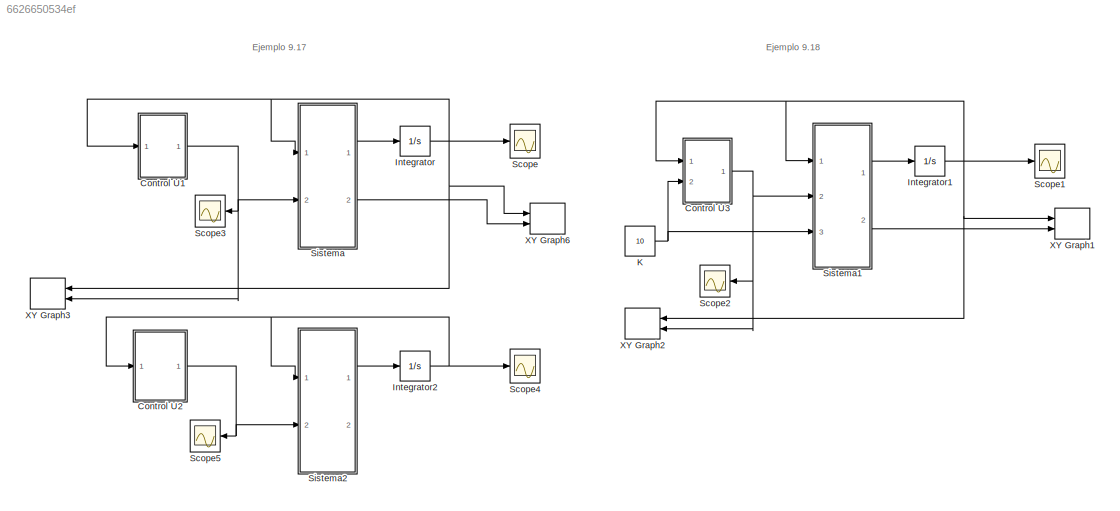
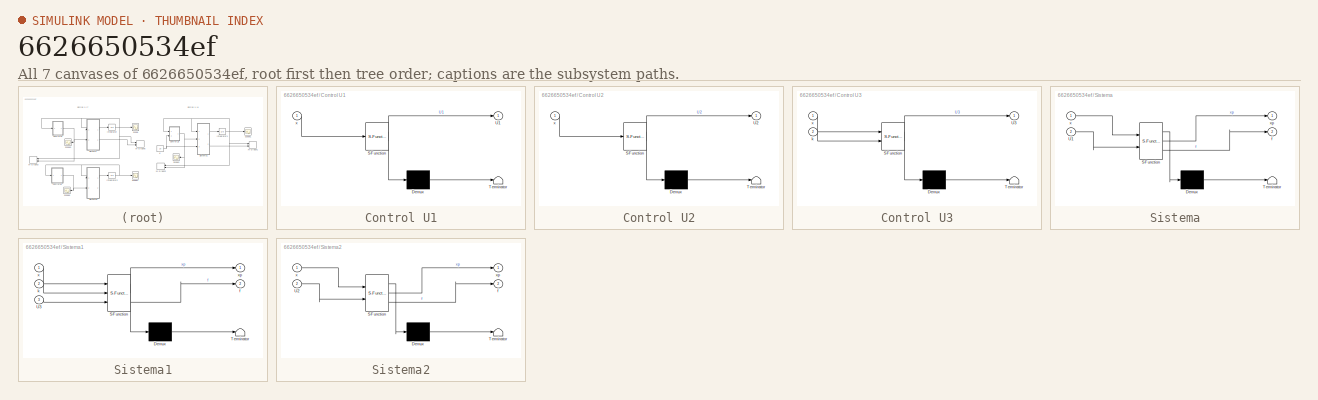
[diagram: thumbnail index - all 7 canvases of the model, root first then tree order]
MODEL slx_6626650534ef
KIND model
CONFIG AbsTol = auto
CONFIG EnableMultiTasking = off
CONFIG FixedStep = 0.01
CONFIG MaxStep = auto
CONFIG MinStep = auto
CONFIG RelTol = 1e-3
CONFIG SampleTimeConstraint = Unconstrained
CONFIG SolverName = ode4
CONFIG StartTime = 0.0
CONFIG StopTime = 20
BLOCK [SubSystem] Control U1
  Commented = on
  ErrorFcn = Stateflow.Translate.translate
  PermitHierarchicalResolution = ExplicitOnly
  Ports = [1, 1]
  RequestExecContextInheritance = off
  SFBlockType = MATLAB Function
  TreatAsAtomicUnit = on
BLOCK [Demux] Control U1/ Demux 
  Outputs = 1
  Ports = [1, 1]
BLOCK [S-Function] Control U1/ SFunction 
  EnableBusSupport = on
  FunctionName = sf_sfun
  PortCounts = [1 2]
  Ports = [1, 2]
  SFcnIsStateOwnerBlock = off
  SFunctionDeploymentMode = off
  Tag = Stateflow S-Function 3
BLOCK [Terminator] Control U1/ Terminator 
BLOCK [Outport] Control U1/U1
BLOCK [Inport] Control U1/x
BLOCK [SubSystem] Control U2
  Commented = on
  ErrorFcn = Stateflow.Translate.translate
  PermitHierarchicalResolution = ExplicitOnly
  Ports = [1, 1]
  RequestExecContextInheritance = off
  SFBlockType = MATLAB Function
  TreatAsAtomicUnit = on
BLOCK [Demux] Control U2/ Demux 
  Outputs = 1
  Ports = [1, 1]
BLOCK [S-Function] Control U2/ SFunction 
  EnableBusSupport = on
  FunctionName = sf_sfun
  PortCounts = [1 2]
  Ports = [1, 2]
  SFcnIsStateOwnerBlock = off
  SFunctionDeploymentMode = off
  Tag = Stateflow S-Function 2
BLOCK [Terminator] Control U2/ Terminator 
BLOCK [Outport] Control U2/U2
BLOCK [Inport] Control U2/x
BLOCK [SubSystem] Control U3
  ErrorFcn = Stateflow.Translate.translate
  PermitHierarchicalResolution = ExplicitOnly
  Ports = [2, 1]
  RequestExecContextInheritance = off
  SFBlockType = MATLAB Function
  TreatAsAtomicUnit = on
BLOCK [Demux] Control U3/ Demux 
  Outputs = 1
  Ports = [1, 1]
BLOCK [S-Function] Control U3/ SFunction 
  EnableBusSupport = on
  FunctionName = sf_sfun
  PortCounts = [2 2]
  Ports = [2, 2]
  SFcnIsStateOwnerBlock = off
  SFunctionDeploymentMode = off
  Tag = Stateflow S-Function 4
BLOCK [Terminator] Control U3/ Terminator 
BLOCK [Outport] Control U3/U3
BLOCK [Inport] Control U3/k
  Port = 2
BLOCK [Inport] Control U3/x
BLOCK [Integrator] Integrator
  Commented = on
  Ports = [1, 1]
BLOCK [Integrator] Integrator1
  InitialCondition = 5
  Ports = [1, 1]
BLOCK [Integrator] Integrator2
  Commented = on
  Ports = [1, 1]
BLOCK [Constant] K
  Value = 10
BLOCK [Scope] Scope
  Commented = on
  Floating = off
  NumInputPorts = 1
  Ports = [1]
  ScopeSpecificationString = Simulink.scopes.TimeScopeBlockCfg('CurrentConfiguration', extmgr.ConfigurationSet(extmgr.Configuration('Core','General UI',true,'FigureColor',[1 1 1]),extmgr.Configuration('Core','Source UI',true),extmgr.Configuration('Sources','WiredSimulink',true),extmgr.Configuration('Visuals','Time Domain',true,'SerializedDisplays',{struct('MinYLimReal','-1.00000','MaxYLimReal','1.00000','YLabelReal','','MinYL...<+1520ch>
BLOCK [Scope] Scope1
  Floating = off
  NumInputPorts = 1
  Ports = [1]
  ScopeSpecificationString = Simulink.scopes.TimeScopeBlockCfg('CurrentConfiguration', extmgr.ConfigurationSet(extmgr.Configuration('Core','General UI',true,'FigureColor',[1 1 1]),extmgr.Configuration('Core','Source UI',true),extmgr.Configuration('Sources','WiredSimulink',true,'DataLoggingVariableName','ScopeData5'),extmgr.Configuration('Visuals','Time Domain',true,'SerializedDisplays',{struct('MinYLimReal','-0.57846','MaxYLi...<+1541ch>
BLOCK [Scope] Scope2
  Floating = off
  NameLocation = top
  NumInputPorts = 1
  Ports = [1]
  ScopeSpecificationString = Simulink.scopes.TimeScopeBlockCfg('CurrentConfiguration', extmgr.ConfigurationSet(extmgr.Configuration('Core','General UI',true,'FigureColor',[1 1 1]),extmgr.Configuration('Core','Source UI',true),extmgr.Configuration('Sources','WiredSimulink',true,'DataLoggingVariableName','ScopeData2'),extmgr.Configuration('Visuals','Time Domain',true,'SerializedDisplays',{struct('MinYLimReal','-5.18216','MaxYLi...<+1517ch>
BLOCK [Scope] Scope3
  Commented = on
  Floating = off
  NameLocation = top
  NumInputPorts = 1
  Ports = [1]
  ScopeSpecificationString = Simulink.scopes.TimeScopeBlockCfg('CurrentConfiguration', extmgr.ConfigurationSet(extmgr.Configuration('Core','General UI',true,'FigureColor',[1 1 1]),extmgr.Configuration('Core','Source UI',true),extmgr.Configuration('Sources','WiredSimulink',true,'DataLoggingVariableName','ScopeData3'),extmgr.Configuration('Visuals','Time Domain',true,'SerializedDisplays',{struct('MinYLimReal','-1.00000','MaxYLi...<+1538ch>
BLOCK [Scope] Scope4
  Commented = on
  Floating = off
  NumInputPorts = 1
  Ports = [1]
  ScopeSpecificationString = Simulink.scopes.TimeScopeBlockCfg('CurrentConfiguration', extmgr.ConfigurationSet(extmgr.Configuration('Core','General UI',true,'FigureColor',[1 1 1]),extmgr.Configuration('Core','Source UI',true),extmgr.Configuration('Sources','WiredSimulink',true,'DataLoggingVariableName','ScopeData1'),extmgr.Configuration('Visuals','Time Domain',true,'SerializedDisplays',{struct('MinYLimReal','-1.00000','MaxYLi...<+1541ch>
BLOCK [Scope] Scope5
  Commented = on
  Floating = off
  NameLocation = top
  NumInputPorts = 1
  Ports = [1]
  ScopeSpecificationString = Simulink.scopes.TimeScopeBlockCfg('CurrentConfiguration', extmgr.ConfigurationSet(extmgr.Configuration('Core','General UI',true,'FigureColor',[1 1 1]),extmgr.Configuration('Core','Source UI',true),extmgr.Configuration('Sources','WiredSimulink',true,'DataLoggingVariableName','ScopeData2'),extmgr.Configuration('Visuals','Time Domain',true,'SerializedDisplays',{struct('MinYLimReal','-1.00000','MaxYLi...<+1514ch>
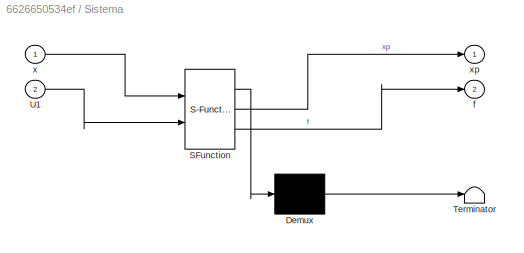
BLOCK [SubSystem] Sistema
  Commented = on
  ErrorFcn = Stateflow.Translate.translate
  PermitHierarchicalResolution = ExplicitOnly
  Ports = [2, 2]
  RequestExecContextInheritance = off
  SFBlockType = MATLAB Function
  TreatAsAtomicUnit = on
BLOCK [Demux] Sistema/ Demux 
  Outputs = 1
  Ports = [1, 1]
BLOCK [S-Function] Sistema/ SFunction 
  EnableBusSupport = on
  FunctionName = sf_sfun
  PortCounts = [2 3]
  Ports = [2, 3]
  SFcnIsStateOwnerBlock = off
  SFunctionDeploymentMode = off
  Tag = Stateflow S-Function 1
BLOCK [Terminator] Sistema/ Terminator 
BLOCK [Inport] Sistema/U1
  Port = 2
BLOCK [Outport] Sistema/f
  Port = 2
BLOCK [Inport] Sistema/x
BLOCK [Outport] Sistema/xp
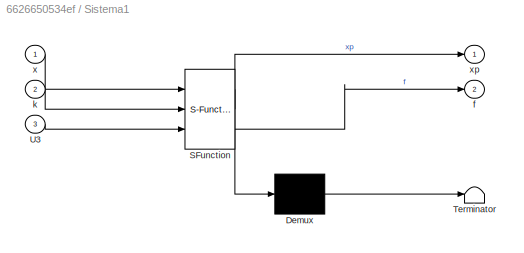
BLOCK [SubSystem] Sistema1
  ErrorFcn = Stateflow.Translate.translate
  PermitHierarchicalResolution = ExplicitOnly
  Ports = [3, 2]
  RequestExecContextInheritance = off
  SFBlockType = MATLAB Function
  TreatAsAtomicUnit = on
BLOCK [Demux] Sistema1/ Demux 
  Outputs = 1
  Ports = [1, 1]
BLOCK [S-Function] Sistema1/ SFunction 
  EnableBusSupport = on
  FunctionName = sf_sfun
  PortCounts = [3 3]
  Ports = [3, 3]
  SFcnIsStateOwnerBlock = off
  SFunctionDeploymentMode = off
  Tag = Stateflow S-Function 6
BLOCK [Terminator] Sistema1/ Terminator 
BLOCK [Inport] Sistema1/U3
  Port = 3
BLOCK [Outport] Sistema1/f
  Port = 2
BLOCK [Inport] Sistema1/k
  Port = 2
BLOCK [Inport] Sistema1/x
BLOCK [Outport] Sistema1/xp
BLOCK [SubSystem] Sistema2
  Commented = on
  ErrorFcn = Stateflow.Translate.translate
  PermitHierarchicalResolution = ExplicitOnly
  Ports = [2, 2]
  RequestExecContextInheritance = off
  SFBlockType = MATLAB Function
  TreatAsAtomicUnit = on
BLOCK [Demux] Sistema2/ Demux 
  Outputs = 1
  Ports = [1, 1]
BLOCK [S-Function] Sistema2/ SFunction 
  EnableBusSupport = on
  FunctionName = sf_sfun
  PortCounts = [2 3]
  Ports = [2, 3]
  SFcnIsStateOwnerBlock = off
  SFunctionDeploymentMode = off
  Tag = Stateflow S-Function 7
BLOCK [Terminator] Sistema2/ Terminator 
BLOCK [Inport] Sistema2/U2
  Port = 2
BLOCK [Outport] Sistema2/f
  Port = 2
BLOCK [Inport] Sistema2/x
BLOCK [Outport] Sistema2/xp
BLOCK [Record] XY Graph1
  CompatibilityTag = XY
  FileSettingsInternal = {"entries":[{"content":{"excelSettings":{"content":{},"type":"Streamout.ExcelSettings"}},"type":"Streamout.FileSettingStorage","uuid":"285d6b9e-57d1-4632-8a93-13e0081877e7"}],"packageUris":["http://schema.mathworks.com/mf0/streamout_blocks/R2020a"],"version":"1.0"}
  Layout = [1 1]
  Ports = [2]
  SignalsInternal = {"entries":[{"content":{"signals":[{"content":{"blockPath":["Ejemplo9_17/XY Graph1"],"channel":[],"dimensions":[1],"domain":"Ejemplo9_17/XY Graph1","lineColor":"#a2142f","plots":[1],"port":1,"sid":[""],"signalID":1705,"signalName":"Integrator1"},"type":"RecordBlkView.Signal","uuid":"b971d81f-d9f7-40d6-91f8-4ea20e89d19d"},{"content":{"blockPath":["Ejemplo9_17/XY Graph1"],"channel":[],"dimensions":[...<+386ch>
  VisualizationBindings = {"xyplotplugin":{"info":[{"series":[{"bindingParametersList":[{"parameter":"X-Axis","signalID":1705,"signalName":"Integrator1"},{"parameter":"Y-Axis","signalID":1709,"signalName":"Sistema1:2"}],"seriesID":64494}],"subplotID":1}]}}
BLOCK [Record] XY Graph2
  CompatibilityTag = XY
  FileSettingsInternal = {"entries":[{"content":{"excelSettings":{"content":{},"type":"Streamout.ExcelSettings"}},"type":"Streamout.FileSettingStorage","uuid":"26f140e9-1351-4ae6-b296-d34ac1091e77"}],"packageUris":["http://schema.mathworks.com/mf0/streamout_blocks/R2020a"],"version":"1.0"}
  Layout = [1 1]
  NameLocation = top
  Ports = [2]
  SignalsInternal = {"entries":[{"content":{"signals":[{"content":{"blockPath":["Ejemplo9_17/XY Graph2"],"channel":[],"dimensions":[1],"domain":"Ejemplo9_17/XY Graph2","lineColor":"#a2142f","plots":[1],"port":1,"sid":[""],"signalID":1713,"signalName":"Integrator1"},"type":"RecordBlkView.Signal","uuid":"a629b91d-a06a-49b2-8b15-1d3397dd949a"},{"content":{"blockPath":["Ejemplo9_17/XY Graph2"],"channel":[],"dimensions":[...<+386ch>
  VisualizationBindings = {"xyplotplugin":{"info":[{"series":[{"bindingParametersList":[{"parameter":"X-Axis","signalID":1713,"signalName":"Integrator1"},{"parameter":"Y-Axis","signalID":1717,"signalName":"Control U3"}],"seriesID":57647}],"subplotID":1}]}}
BLOCK [Record] XY Graph3
  Commented = on
  CompatibilityTag = XY
  FileSettingsInternal = {"entries":[{"content":{"excelSettings":{"content":{},"type":"Streamout.ExcelSettings"}},"type":"Streamout.FileSettingStorage","uuid":"9eca84eb-f65d-48ee-b887-62351bee95d2"}],"packageUris":["http://schema.mathworks.com/mf0/streamout_blocks/R2020a"],"version":"1.0"}
  Layout = [1 1]
  NameLocation = top
  Ports = [2]
  SignalsInternal = {"entries":[{"content":{"signals":[]},"type":"RecordBlkView.InputSignals","uuid":"570572f3-645f-4ac6-a4b6-cb3f22f652ff"}],"packageUris":["http://schema.mathworks.com/mf0/streamout_blocks/R2020a"],"version":"1.0"}
  VisualizationBindings = {"xyplotplugin":{"info":[{"series":[],"subplotID":1}]}}
BLOCK [Record] XY Graph6
  Commented = on
  CompatibilityTag = XY
  FileSettingsInternal = {"entries":[{"content":{"excelSettings":{"content":{},"type":"Streamout.ExcelSettings"}},"type":"Streamout.FileSettingStorage","uuid":"ba308264-28e2-4c27-9ec6-c68c1152fc21"}],"packageUris":["http://schema.mathworks.com/mf0/streamout_blocks/R2020a"],"version":"1.0"}
  Layout = [1 1]
  Ports = [2]
  SignalsInternal = {"entries":[{"content":{"signals":[]},"type":"RecordBlkView.InputSignals","uuid":"f3679a38-62a2-4b76-8e8f-39a71b715a56"}],"packageUris":["http://schema.mathworks.com/mf0/streamout_blocks/R2020a"],"version":"1.0"}
  VisualizationBindings = {"xyplotplugin":{"info":[{"series":[],"subplotID":1}]}}
ANNOTATION (root): Ejemplo 9.17
ANNOTATION (root): Ejemplo 9.18
NET Control U1:1 -> Scope3:1, Sistema:2, XY Graph3:2
NET Control U2:1 -> Scope5:1, Sistema2:2
NET Control U3:1 -> Scope2:1, Sistema1:2, XY Graph2:2
NET Integrator1:1 -> Control U3:1, Scope1:1, Sistema1:1, XY Graph1:1, XY Graph2:1
NET Integrator2:1 -> Control U2:1, Scope4:1, Sistema2:1
NET Integrator:1 -> Control U1:1, Scope:1, Sistema:1, XY Graph3:1, XY Graph6:1
NET K:1 -> Control U3:2, Sistema1:3
LINE Sistema1:1 -> Integrator1:1
LINE Sistema1:2 -> XY Graph1:2
LINE Sistema2:1 -> Integrator2:1
LINE Sistema:1 -> Integrator:1
LINE Sistema:2 -> XY Graph6:2
note: NET lines group one-source signal fan-out (src -> all destinations, sorted); 1:1 wires keep LINE
CHART Sistema states=1 transitions=1
  STATE_LABEL 'eML_blk_kernel()'
  STATE_LABEL 'SCRIPT:\nfunction [xp,f]  = fcn(x,U1)\n\nxp = x - x^3 + U1;\nf = x - x^3;\nend'
CHART Control U2 states=1 transitions=1
  STATE_LABEL 'eML_blk_kernel()'
  STATE_LABEL 'SCRIPT:\nfunction U2    = fcn(x)\n\nU2 = -x + (x)^3 - x*sqrt( (1-(x)^2)^2 +1);\n\n'
CHART Control U1 states=1 transitions=1
  STATE_LABEL 'eML_blk_kernel()'
  STATE_LABEL 'SCRIPT:\nfunction U1   = fcn(x)\n\nalpha = sqrt(2);\nU1 = -x + (x)^3 -alpha*x;\nend\n'
CHART Control U3 states=1 transitions=1
  STATE_LABEL 'eML_blk_kernel()'
  STATE_LABEL 'SCRIPT:\nfunction U3   = fcn(x,k) \nalpha = sqrt(2);\nU3 = (1/k)*(-x + (x)^3 -alpha*k*x -k*x + x);\nend\n'
CHART Sistema1 states=1 transitions=1
  STATE_LABEL 'eML_blk_kernel()'
  STATE_LABEL 'SCRIPT:\nfunction [xp,f]  = fcn(x,k,U3)\n\nxp = x - x^3 + sin(x)*k*U3;\nf = x - x^3;\nend'
CHART Sistema2 states=1 transitions=1
  STATE_LABEL 'eML_blk_kernel()'
  STATE_LABEL 'SCRIPT:\nfunction [xp,f]  = fcn(x,U2)\n\nxp = x - x^3 + U2;\n%xp = x - x^3 + U2;\nf = x - x^3;\nend'
CHART  states=0 transitions=0
CHART  states=0 transitions=0
CHART  states=0 transitions=0
CHART  states=0 transitions=0
CHART  states=0 transitions=0
CHART  states=0 transitions=0
